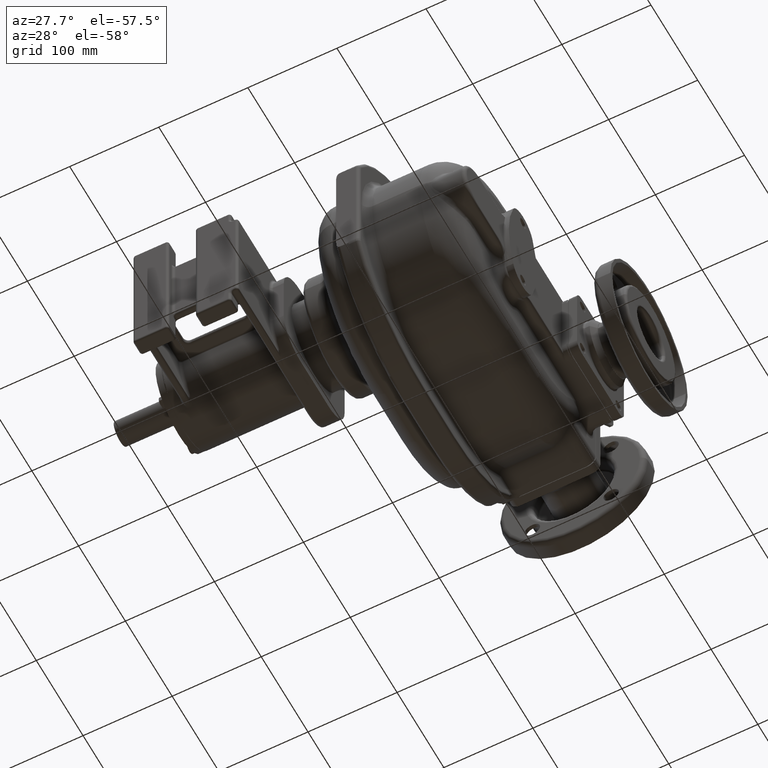
[diagram: clean part render]
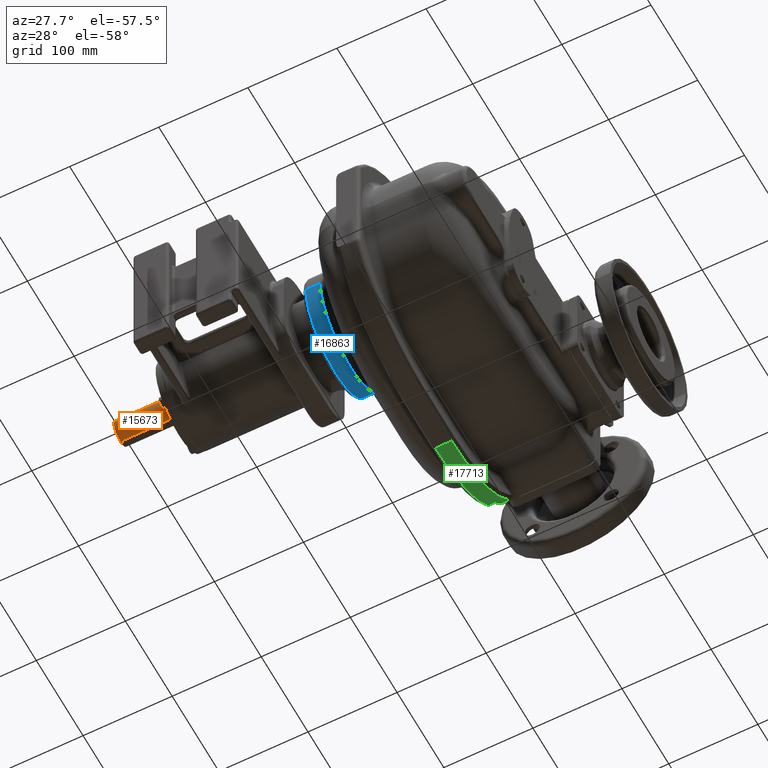
[diagram: same view with three faces highlighted in distinct colors, each labeled with its STEP entity id]
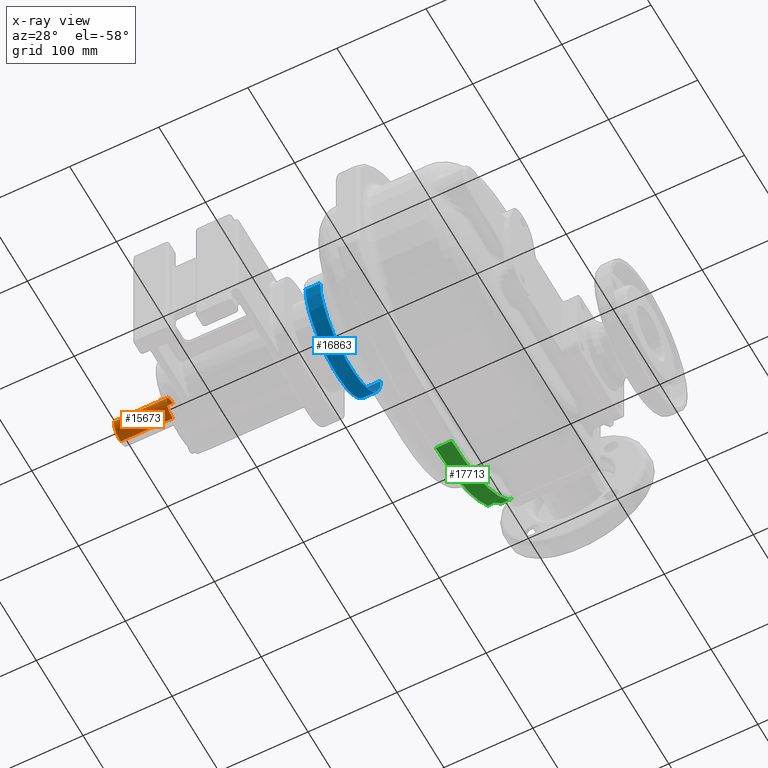
[diagram: x-ray of the same camera — body ghosted, the three highlighted faces saturated]
A machine part, auxiliary view with three faces highlighted in distinct colors.
The next image is the same camera in x-ray (body ghosted, the three faces saturated) — at least one of them is partly hidden behind the body in this view.
Their STEP definitions:

[orange] entity #15673 — the highlighted cylindrical surface (edge-blend (fillet) strip) has radius 14 mm, axis along (1, 0, 0).
#2713=CARTESIAN_POINT('',(-2.943E2,0.E0,0.E0));
#2714=DIRECTION('',(1.E0,0.E0,0.E0));
#2715=DIRECTION('',(0.E0,0.E0,1.E0));
#2716=AXIS2_PLACEMENT_3D('',#2713,#2714,#2715);
#2718=DIRECTION('',(-1.E0,0.E0,0.E0));
#2719=VECTOR('',#2718,5.87E1);
#2720=CARTESIAN_POINT('',(-2.943E2,0.E0,-1.4E1));
#2721=LINE('',#2720,#2719);
#2722=CARTESIAN_POINT('',(-3.53E2,0.E0,0.E0));
#2723=DIRECTION('',(-1.E0,0.E0,0.E0));
#2724=DIRECTION('',(0.E0,0.E0,-1.E0));
#2725=AXIS2_PLACEMENT_3D('',#2722,#2723,#2724);
#2727=DIRECTION('',(-1.E0,0.E0,0.E0));
#2728=VECTOR('',#2727,5.87E1);
#2729=CARTESIAN_POINT('',(-2.943E2,0.E0,1.4E1));
#2730=LINE('',#2729,#2728);
#11463=CARTESIAN_POINT('',(-3.53E2,0.E0,-1.4E1));
#11464=CARTESIAN_POINT('',(-3.53E2,0.E0,1.4E1));
#11465=VERTEX_POINT('',#11463);
#11466=VERTEX_POINT('',#11464);
#11480=CARTESIAN_POINT('',(-2.943E2,0.E0,-1.4E1));
#11481=CARTESIAN_POINT('',(-2.943E2,0.E0,1.4E1));
#11482=VERTEX_POINT('',#11480);
#11483=VERTEX_POINT('',#11481);
#15661=CARTESIAN_POINT('',(-3.691E2,0.E0,0.E0));
#15662=DIRECTION('',(1.E0,0.E0,0.E0));
#15663=DIRECTION('',(0.E0,0.E0,1.E0));
#15664=AXIS2_PLACEMENT_3D('',#15661,#15662,#15663);
#15665=CYLINDRICAL_SURFACE('',#15664,1.4E1);
#15666=ORIENTED_EDGE('',*,*,#15603,.T.);
#15667=ORIENTED_EDGE('',*,*,#15646,.T.);
#15669=ORIENTED_EDGE('',*,*,#15668,.T.);
#15670=ORIENTED_EDGE('',*,*,#15642,.F.);
#15671=EDGE_LOOP('',(#15666,#15667,#15669,#15670));
#15672=FACE_OUTER_BOUND('',#15671,.F.);
#15673=ADVANCED_FACE('',(#15672),#15665,.T.);
#2717=CIRCLE('',#2716,1.4E1);
#2726=CIRCLE('',#2725,1.4E1);
#15603=EDGE_CURVE('',#11483,#11482,#2717,.T.);
#15642=EDGE_CURVE('',#11483,#11466,#2730,.T.);
#15646=EDGE_CURVE('',#11482,#11465,#2721,.T.);
#15668=EDGE_CURVE('',#11465,#11466,#2726,.T.);

[blue] entity #16863 — the highlighted cylindrical surface (partial cylindrical patch) has radius 65 mm, axis along (1, 0, 0).
#4161=CARTESIAN_POINT('',(-1.11E2,0.E0,0.E0));
#4162=DIRECTION('',(1.E0,0.E0,0.E0));
#4163=DIRECTION('',(0.E0,-1.E0,0.E0));
#4164=AXIS2_PLACEMENT_3D('',#4161,#4162,#4163);
#4166=CARTESIAN_POINT('',(-9.481370849898E1,0.E0,0.E0));
#4167=DIRECTION('',(-1.E0,0.E0,0.E0));
#4168=DIRECTION('',(0.E0,1.E0,0.E0));
#4169=AXIS2_PLACEMENT_3D('',#4166,#4167,#4168);
#4176=DIRECTION('',(1.E0,0.E0,0.E0));
#4177=VECTOR('',#4176,1.618629150102E1);
#4178=CARTESIAN_POINT('',(-1.11E2,6.5E1,-1.768809179956E-14));
#4179=LINE('',#4178,#4177);
#4185=DIRECTION('',(1.E0,0.E0,0.E0));
#4186=VECTOR('',#4185,1.618629150102E1);
#4187=CARTESIAN_POINT('',(-1.11E2,-6.5E1,0.E0));
#4188=LINE('',#4187,#4186);
#10136=CARTESIAN_POINT('',(-1.11E2,-6.5E1,0.E0));
#10137=CARTESIAN_POINT('',(-1.11E2,6.5E1,0.E0));
#10138=VERTEX_POINT('',#10136);
#10139=VERTEX_POINT('',#10137);
#10159=CARTESIAN_POINT('',(-9.481370849898E1,6.5E1,0.E0));
#10160=CARTESIAN_POINT('',(-9.481370849898E1,-6.5E1,0.E0));
#10161=VERTEX_POINT('',#10159);
#10162=VERTEX_POINT('',#10160);
#16849=CARTESIAN_POINT('',(-1.17025E2,0.E0,0.E0));
#16850=DIRECTION('',(1.E0,0.E0,0.E0));
#16851=DIRECTION('',(0.E0,-1.E0,0.E0));
#16852=AXIS2_PLACEMENT_3D('',#16849,#16850,#16851);
#16853=CYLINDRICAL_SURFACE('',#16852,6.5E1);
#16854=ORIENTED_EDGE('',*,*,#16839,.F.);
#16856=ORIENTED_EDGE('',*,*,#16855,.T.);
#16858=ORIENTED_EDGE('',*,*,#16857,.F.);
#16860=ORIENTED_EDGE('',*,*,#16859,.F.);
#16861=EDGE_LOOP('',(#16854,#16856,#16858,#16860));
#16862=FACE_OUTER_BOUND('',#16861,.F.);
#16863=ADVANCED_FACE('',(#16862),#16853,.T.);
#4165=CIRCLE('',#4164,6.5E1);
#4170=CIRCLE('',#4169,6.5E1);
#16839=EDGE_CURVE('',#10138,#10139,#4165,.T.);
#16855=EDGE_CURVE('',#10138,#10162,#4188,.T.);
#16857=EDGE_CURVE('',#10161,#10162,#4170,.T.);
#16859=EDGE_CURVE('',#10139,#10161,#4179,.T.);

[green] entity #17713 — the highlighted cylindrical surface (partial cylindrical patch) has radius 152 mm, axis along (-1, 0, 0).
#4806=DIRECTION('',(-1.E0,0.E0,0.E0));
#4807=VECTOR('',#4806,1.8E1);
#4808=CARTESIAN_POINT('',(-1.75E1,6.9E1,-1.62E2));
#4809=LINE('',#4808,#4807);
#4818=DIRECTION('',(-1.E0,0.E0,0.E0));
#4819=VECTOR('',#4818,8.E0);
#4820=CARTESIAN_POINT('',(-2.75E1,1.810808080808E2,-1.126737184481E2));
#4821=LINE('',#4820,#4819);
#4822=CARTESIAN_POINT('',(-3.55E1,6.9E1,-1.E1));
#4823=DIRECTION('',(-1.E0,0.E0,0.E0));
#4824=DIRECTION('',(0.E0,7.373737373737E-1,-6.754849897899E-1));
#4825=AXIS2_PLACEMENT_3D('',#4822,#4823,#4824);
#4827=CARTESIAN_POINT('',(-1.75E1,6.9E1,-1.E1));
#4828=DIRECTION('',(1.E0,0.E0,0.E0));
#4829=DIRECTION('',(0.E0,0.E0,-1.E0));
#4830=AXIS2_PLACEMENT_3D('',#4827,#4828,#4829);
#4832=CARTESIAN_POINT('',(-1.75E1,1.888721378701E2,-1.034594594595E2));
#4833=CARTESIAN_POINT('',(-1.749999995520E1,1.890123828381E2,
-1.032795796951E2));
#4834=CARTESIAN_POINT('',(-1.749233968162E1,1.892905578533E2,
-1.029211205563E2));
#4835=CARTESIAN_POINT('',(-1.745823586831E1,1.897013460475E2,
-1.023868749173E2));
#4836=CARTESIAN_POINT('',(-1.740196043520E1,1.901045172388E2,
-1.018577229836E2));
#4837=CARTESIAN_POINT('',(-1.732406253917E1,1.904992931177E2,
-1.013348916827E2));
#4838=CARTESIAN_POINT('',(-1.722515799444E1,1.908849754526E2,
-1.008195366841E2));
#4839=CARTESIAN_POINT('',(-1.710592948671E1,1.912609570829E2,
-1.003127250279E2));
#4840=CARTESIAN_POINT('',(-1.696711041721E1,1.916267214782E2,
-9.981542882262E1));
#4841=CARTESIAN_POINT('',(-1.680947443834E1,1.919818370853E2,
-9.932852707056E1));
#4842=CARTESIAN_POINT('',(-1.663382539430E1,1.923259506189E2,
-9.885280909494E1));
#4843=CARTESIAN_POINT('',(-1.644098720023E1,1.926587821302E2,
-9.838897598133E1));
#4844=CARTESIAN_POINT('',(-1.623179766223E1,1.929801162511E2,
-9.793764793830E1));
#4845=CARTESIAN_POINT('',(-1.600709199430E1,1.932898055408E2,
-9.749935470391E1));
#4846=CARTESIAN_POINT('',(-1.576773079944E1,1.935877270609E2,
-9.707459393587E1));
#4847=CARTESIAN_POINT('',(-1.551447973693E1,1.938738978532E2,
-9.666366084243E1));
#4848=CARTESIAN_POINT('',(-1.533708893445E1,1.940566781135E2,
-9.639937563184E1));
#4849=CARTESIAN_POINT('',(-1.524631236524E1,1.941461520833E2,
-9.626958107433E1));
#4851=DIRECTION('',(-1.E0,0.E0,0.E0));
#4852=VECTOR('',#4851,1.225368763476E1);
#4853=CARTESIAN_POINT('',(-1.524631236524E1,1.941461520833E2,
-9.626958107433E1));
#4854=LINE('',#4853,#4852);
#4869=CARTESIAN_POINT('',(-2.75E1,6.9E1,-1.E1));
#4870=DIRECTION('',(-1.E0,0.E0,0.E0));
#4871=DIRECTION('',(0.E0,8.233299479165E-1,-5.675630333838E-1));
#4872=AXIS2_PLACEMENT_3D('',#4869,#4870,#4871);
#6560=CARTESIAN_POINT('',(-1.524631236524E1,1.941461520833E2,
-9.626958107433E1));
#10084=VERTEX_POINT('',#6560);
#10089=VERTEX_POINT('',#4832);
#10092=CARTESIAN_POINT('',(-1.75E1,6.9E1,-1.62E2));
#10093=VERTEX_POINT('',#10092);
#10120=CARTESIAN_POINT('',(-2.75E1,1.941461520833E2,-9.626958107433E1));
#10121=VERTEX_POINT('',#10120);
#10259=CARTESIAN_POINT('',(-3.55E1,6.9E1,-1.62E2));
#10260=VERTEX_POINT('',#10259);
#10263=CARTESIAN_POINT('',(-3.55E1,1.810808080808E2,-1.126737184481E2));
#10264=VERTEX_POINT('',#10263);
#10289=CARTESIAN_POINT('',(-2.75E1,1.810808080808E2,-1.126737184481E2));
#10290=VERTEX_POINT('',#10289);
#17693=CARTESIAN_POINT('',(-2.75E1,6.9E1,-1.E1));
#17694=DIRECTION('',(-1.E0,0.E0,0.E0));
#17695=DIRECTION('',(0.E0,0.E0,1.E0));
#17696=AXIS2_PLACEMENT_3D('',#17693,#17694,#17695);
#17697=CYLINDRICAL_SURFACE('',#17696,1.52E2);
#17699=ORIENTED_EDGE('',*,*,#17698,.T.);
#17701=ORIENTED_EDGE('',*,*,#17700,.T.);
#17703=ORIENTED_EDGE('',*,*,#17702,.T.);
#17704=ORIENTED_EDGE('',*,*,#17683,.F.);
#17706=ORIENTED_EDGE('',*,*,#17705,.T.);
#17708=ORIENTED_EDGE('',*,*,#17707,.T.);
#17710=ORIENTED_EDGE('',*,*,#17709,.T.);
#17711=EDGE_LOOP('',(#17699,#17701,#17703,#17704,#17706,#17708,#17710));
#17712=FACE_OUTER_BOUND('',#17711,.F.);
#17713=ADVANCED_FACE('',(#17712),#17697,.T.);
#4826=CIRCLE('',#4825,1.52E2);
#4831=CIRCLE('',#4830,1.52E2);
#4850=B_SPLINE_CURVE_WITH_KNOTS('',3,(#4832,#4833,#4834,#4835,#4836,#4837,#4838,
#4839,#4840,#4841,#4842,#4843,#4844,#4845,#4846,#4847,#4848,#4849),
.UNSPECIFIED.,.F.,.F.,(4,1,1,1,1,1,1,1,1,1,1,1,1,1,1,4),(0.E0,6.666666666667E-2,
1.333333333333E-1,2.E-1,2.666666666667E-1,3.333333333333E-1,4.E-1,
4.666666666667E-1,5.333333333333E-1,6.E-1,6.666666666667E-1,7.333333333333E-1,
8.E-1,8.666666666667E-1,9.333333333333E-1,1.E0),.UNSPECIFIED.);
#4873=CIRCLE('',#4872,1.52E2);
#17683=EDGE_CURVE('',#10093,#10260,#4809,.T.);
#17698=EDGE_CURVE('',#10121,#10290,#4873,.T.);
#17700=EDGE_CURVE('',#10290,#10264,#4821,.T.);
#17702=EDGE_CURVE('',#10264,#10260,#4826,.T.);
#17705=EDGE_CURVE('',#10093,#10089,#4831,.T.);
#17707=EDGE_CURVE('',#10089,#10084,#4850,.T.);
#17709=EDGE_CURVE('',#10084,#10121,#4854,.T.);